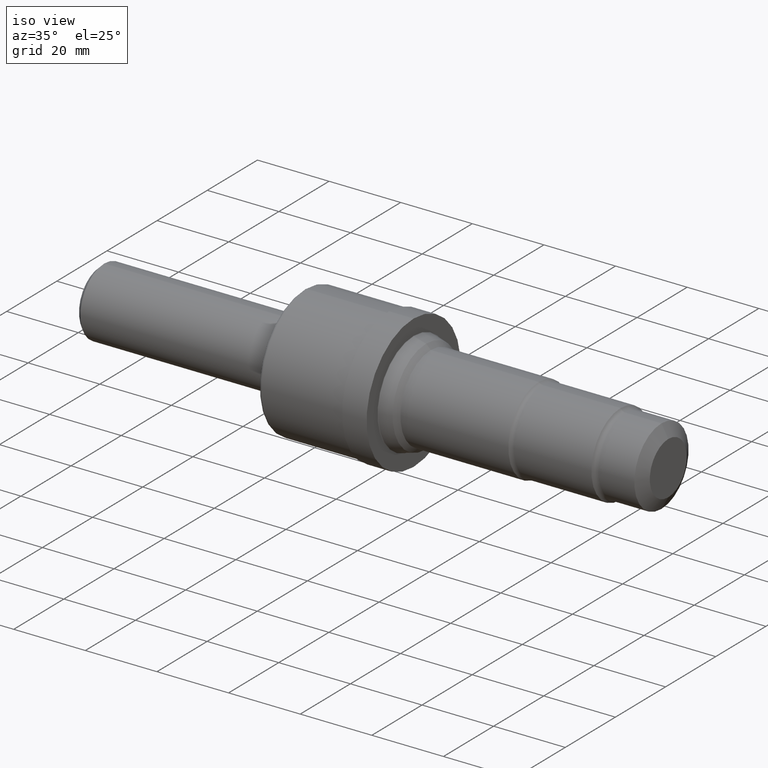
[diagram: clean part render]
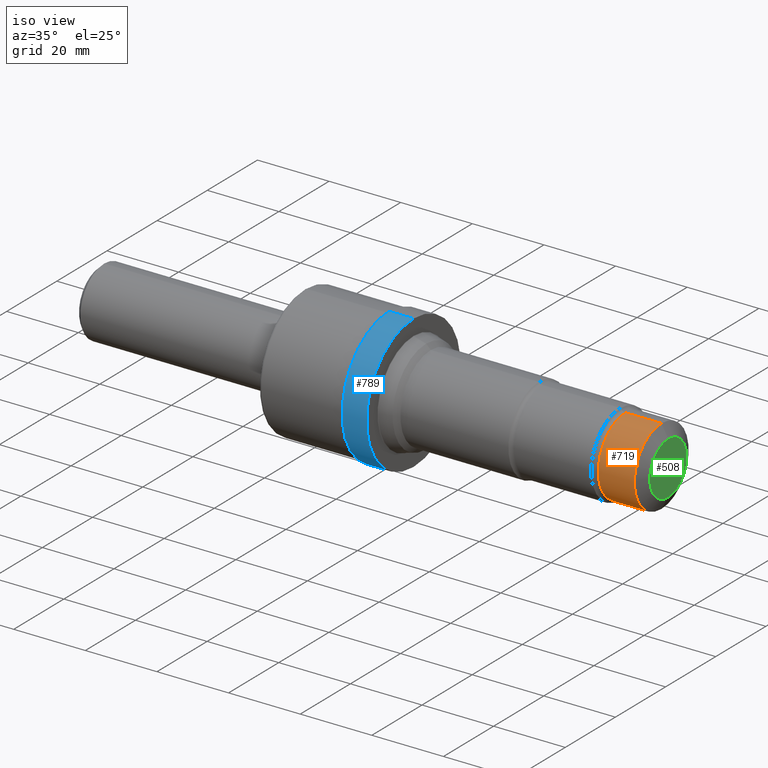
[diagram: same view with three faces highlighted in distinct colors, each labeled with its STEP entity id]
A machine part, iso view with three faces highlighted in distinct colors.
Their STEP definitions:

[orange] entity #719 — the highlighted cylindrical surface (partial cylindrical patch) has radius 10.8052 mm, axis along (-1, -0, -0).
#3 = AXIS2_PLACEMENT_3D ( 'NONE', #367, #142, #677 ) ;
#64 = ORIENTED_EDGE ( 'NONE', *, *, #150, .F. ) ;
#66 = DIRECTION ( 'NONE',  ( -1.000000000000000000, -0.0000000000000000000, -0.0000000000000000000 ) ) ;
#73 = EDGE_CURVE ( 'NONE', #700, #819, #380, .T. ) ;
#84 = CARTESIAN_POINT ( 'NONE',  ( 6.175000000000000711, 5.209647483572841703E-17, -0.4254000000000000004 ) ) ;
#101 = AXIS2_PLACEMENT_3D ( 'NONE', #324, #404, #759 ) ;
#142 = DIRECTION ( 'NONE',  ( -1.000000000000000000, -0.0000000000000000000, -0.0000000000000000000 ) ) ;
#150 = EDGE_CURVE ( 'NONE', #422, #819, #926, .T. ) ;
#191 = ORIENTED_EDGE ( 'NONE', *, *, #238, .F. ) ;
#234 = AXIS2_PLACEMENT_3D ( 'NONE', #745, #66, #290 ) ;
#238 = EDGE_CURVE ( 'NONE', #327, #422, #603, .T. ) ;
#290 = DIRECTION ( 'NONE',  ( 0.0000000000000000000, 0.0000000000000000000, 1.000000000000000000 ) ) ;
#324 = CARTESIAN_POINT ( 'NONE',  ( 6.175000000000000711, 0.0000000000000000000, 0.0000000000000000000 ) ) ;
#327 = VERTEX_POINT ( 'NONE', #84 ) ;
#356 = CARTESIAN_POINT ( 'NONE',  ( 5.778693575034636432, 5.399467737440679798E-17, -0.4253999999999998338 ) ) ;
#367 = CARTESIAN_POINT ( 'NONE',  ( 5.778693575034636432, 0.0000000000000000000, 0.0000000000000000000 ) ) ;
#380 = LINE ( 'NONE', #943, #635 ) ;
#404 = DIRECTION ( 'NONE',  ( -1.000000000000000000, -0.0000000000000000000, -0.0000000000000000000 ) ) ;
#422 = VERTEX_POINT ( 'NONE', #356 ) ;
#563 = DIRECTION ( 'NONE',  ( -1.000000000000000000, -0.0000000000000000000, -0.0000000000000000000 ) ) ;
#586 = DIRECTION ( 'NONE',  ( -1.000000000000000000, -0.0000000000000000000, -0.0000000000000000000 ) ) ;
#603 = LINE ( 'NONE', #870, #626 ) ;
#607 = CARTESIAN_POINT ( 'NONE',  ( 5.778693575034636432, 0.0000000000000000000, 0.4253999999999998338 ) ) ;
#626 = VECTOR ( 'NONE', #563, 39.37007874015748143 ) ;
#635 = VECTOR ( 'NONE', #586, 39.37007874015748143 ) ;
#637 = ORIENTED_EDGE ( 'NONE', *, *, #902, .T. ) ;
#677 = DIRECTION ( 'NONE',  ( 0.0000000000000000000, 0.0000000000000000000, 1.000000000000000000 ) ) ;
#682 = CIRCLE ( 'NONE', #101, 0.4254000000000000004 ) ;
#700 = VERTEX_POINT ( 'NONE', #862 ) ;
#719 = ADVANCED_FACE ( 'NONE', ( #793 ), #775, .T. ) ;
#745 = CARTESIAN_POINT ( 'NONE',  ( 0.0000000000000000000, 0.0000000000000000000, 0.0000000000000000000 ) ) ;
#747 = EDGE_LOOP ( 'NONE', ( #191, #637, #791, #64 ) ) ;
#759 = DIRECTION ( 'NONE',  ( 0.0000000000000000000, 0.0000000000000000000, 1.000000000000000000 ) ) ;
#775 = CYLINDRICAL_SURFACE ( 'NONE', #234, 0.4253999999999999448 ) ;
#791 = ORIENTED_EDGE ( 'NONE', *, *, #73, .T. ) ;
#793 = FACE_OUTER_BOUND ( 'NONE', #747, .T. ) ;
#819 = VERTEX_POINT ( 'NONE', #607 ) ;
#862 = CARTESIAN_POINT ( 'NONE',  ( 6.175000000000000711, 0.0000000000000000000, 0.4254000000000000004 ) ) ;
#870 = CARTESIAN_POINT ( 'NONE',  ( 0.0000000000000000000, 5.209647483572839855E-17, -0.4253999999999999448 ) ) ;
#902 = EDGE_CURVE ( 'NONE', #327, #700, #682, .T. ) ;
#926 = CIRCLE ( 'NONE', #3, 0.4253999999999998338 ) ;
#943 = CARTESIAN_POINT ( 'NONE',  ( 0.0000000000000000000, 0.0000000000000000000, 0.4253999999999999448 ) ) ;

[blue] entity #789 — the highlighted cylindrical surface (partial cylindrical patch) has radius 18.7325 mm, axis along (-1, -0, -0).
#16 = AXIS2_PLACEMENT_3D ( 'NONE', #291, #460, #650 ) ;
#46 = DIRECTION ( 'NONE',  ( -1.000000000000000000, -0.0000000000000000000, -0.0000000000000000000 ) ) ;
#57 = DIRECTION ( 'NONE',  ( -1.000000000000000000, -0.0000000000000000000, -0.0000000000000000000 ) ) ;
#80 = VERTEX_POINT ( 'NONE', #321 ) ;
#104 = AXIS2_PLACEMENT_3D ( 'NONE', #679, #46, #444 ) ;
#124 = CIRCLE ( 'NONE', #16, 0.7374999999999999334 ) ;
#167 = DIRECTION ( 'NONE',  ( -1.000000000000000000, -0.0000000000000000000, -0.0000000000000000000 ) ) ;
#240 = EDGE_CURVE ( 'NONE', #699, #80, #918, .T. ) ;
#241 = VERTEX_POINT ( 'NONE', #883 ) ;
#275 = ORIENTED_EDGE ( 'NONE', *, *, #355, .T. ) ;
#283 = CARTESIAN_POINT ( 'NONE',  ( 3.450000000000000622, 0.0000000000000000000, 0.7374999999999999334 ) ) ;
#291 = CARTESIAN_POINT ( 'NONE',  ( 3.450000000000000622, 0.0000000000000000000, 0.0000000000000000000 ) ) ;
#303 = EDGE_CURVE ( 'NONE', #680, #80, #602, .T. ) ;
#312 = LINE ( 'NONE', #520, #333 ) ;
#321 = CARTESIAN_POINT ( 'NONE',  ( 3.180000000000000604, 0.0000000000000000000, 0.7374999999999999334 ) ) ;
#333 = VECTOR ( 'NONE', #57, 39.37007874015748143 ) ;
#355 = EDGE_CURVE ( 'NONE', #241, #680, #124, .T. ) ;
#426 = AXIS2_PLACEMENT_3D ( 'NONE', #692, #167, #905 ) ;
#444 = DIRECTION ( 'NONE',  ( 0.0000000000000000000, 0.0000000000000000000, 1.000000000000000000 ) ) ;
#460 = DIRECTION ( 'NONE',  ( -1.000000000000000000, -0.0000000000000000000, -0.0000000000000000000 ) ) ;
#468 = EDGE_CURVE ( 'NONE', #241, #699, #312, .T. ) ;
#510 = CARTESIAN_POINT ( 'NONE',  ( 0.0000000000000000000, 0.0000000000000000000, 0.7374999999999999334 ) ) ;
#520 = CARTESIAN_POINT ( 'NONE',  ( 0.0000000000000000000, 9.031770143711730242E-17, -0.7374999999999999334 ) ) ;
#532 = ORIENTED_EDGE ( 'NONE', *, *, #303, .T. ) ;
#550 = CARTESIAN_POINT ( 'NONE',  ( 3.180000000000000604, 9.031770143711730242E-17, -0.7374999999999999334 ) ) ;
#602 = LINE ( 'NONE', #510, #913 ) ;
#650 = DIRECTION ( 'NONE',  ( 0.0000000000000000000, 0.0000000000000000000, 1.000000000000000000 ) ) ;
#679 = CARTESIAN_POINT ( 'NONE',  ( 3.180000000000000604, 0.0000000000000000000, 0.0000000000000000000 ) ) ;
#680 = VERTEX_POINT ( 'NONE', #283 ) ;
#692 = CARTESIAN_POINT ( 'NONE',  ( 0.0000000000000000000, 0.0000000000000000000, 0.0000000000000000000 ) ) ;
#699 = VERTEX_POINT ( 'NONE', #550 ) ;
#701 = CYLINDRICAL_SURFACE ( 'NONE', #426, 0.7374999999999999334 ) ;
#728 = FACE_OUTER_BOUND ( 'NONE', #807, .T. ) ;
#789 = ADVANCED_FACE ( 'NONE', ( #728 ), #701, .T. ) ;
#807 = EDGE_LOOP ( 'NONE', ( #917, #275, #532, #927 ) ) ;
#883 = CARTESIAN_POINT ( 'NONE',  ( 3.450000000000000622, 9.031770143711730242E-17, -0.7374999999999999334 ) ) ;
#905 = DIRECTION ( 'NONE',  ( 0.0000000000000000000, 0.0000000000000000000, 1.000000000000000000 ) ) ;
#913 = VECTOR ( 'NONE', #931, 39.37007874015748143 ) ;
#917 = ORIENTED_EDGE ( 'NONE', *, *, #468, .F. ) ;
#918 = CIRCLE ( 'NONE', #104, 0.7374999999999999334 ) ;
#927 = ORIENTED_EDGE ( 'NONE', *, *, #240, .F. ) ;
#931 = DIRECTION ( 'NONE',  ( -1.000000000000000000, -0.0000000000000000000, -0.0000000000000000000 ) ) ;

[green] entity #508 — the highlighted planar face has unit normal (-1, 0, -0).
#17 = DIRECTION ( 'NONE',  ( 0.0000000000000000000, 0.0000000000000000000, 1.000000000000000000 ) ) ;
#21 = DIRECTION ( 'NONE',  ( 0.0000000000000000000, 0.0000000000000000000, 1.000000000000000000 ) ) ;
#88 = AXIS2_PLACEMENT_3D ( 'NONE', #560, #421, #273 ) ;
#99 = EDGE_CURVE ( 'NONE', #739, #662, #365, .T. ) ;
#151 = CARTESIAN_POINT ( 'NONE',  ( 6.250000000000000000, 0.0000000000000000000, 0.0000000000000000000 ) ) ;
#178 = EDGE_LOOP ( 'NONE', ( #686, #539 ) ) ;
#198 = PLANE ( 'NONE',  #88 ) ;
#273 = DIRECTION ( 'NONE',  ( -0.0000000000000000000, 0.0000000000000000000, 1.000000000000000000 ) ) ;
#365 = CIRCLE ( 'NONE', #419, 0.2900964183546431707 ) ;
#374 = FACE_OUTER_BOUND ( 'NONE', #178, .T. ) ;
#419 = AXIS2_PLACEMENT_3D ( 'NONE', #151, #767, #17 ) ;
#421 = DIRECTION ( 'NONE',  ( -1.000000000000000000, 0.0000000000000000000, -0.0000000000000000000 ) ) ;
#508 = ADVANCED_FACE ( 'NONE', ( #374 ), #198, .F. ) ;
#518 = CARTESIAN_POINT ( 'NONE',  ( 6.250000000000000000, 4.381151992697046304E-17, -0.2900964183546431707 ) ) ;
#539 = ORIENTED_EDGE ( 'NONE', *, *, #99, .F. ) ;
#560 = CARTESIAN_POINT ( 'NONE',  ( 6.250000000000000000, 0.2900964183546431707, 0.0000000000000000000 ) ) ;
#642 = CIRCLE ( 'NONE', #742, 0.2900964183546431707 ) ;
#659 = CARTESIAN_POINT ( 'NONE',  ( 6.250000000000000000, 0.0000000000000000000, 0.2900964183546431707 ) ) ;
#662 = VERTEX_POINT ( 'NONE', #659 ) ;
#683 = CARTESIAN_POINT ( 'NONE',  ( 6.250000000000000000, 0.0000000000000000000, 0.0000000000000000000 ) ) ;
#686 = ORIENTED_EDGE ( 'NONE', *, *, #784, .F. ) ;
#739 = VERTEX_POINT ( 'NONE', #518 ) ;
#742 = AXIS2_PLACEMENT_3D ( 'NONE', #683, #904, #21 ) ;
#767 = DIRECTION ( 'NONE',  ( -1.000000000000000000, -0.0000000000000000000, -0.0000000000000000000 ) ) ;
#784 = EDGE_CURVE ( 'NONE', #662, #739, #642, .T. ) ;
#904 = DIRECTION ( 'NONE',  ( -1.000000000000000000, -0.0000000000000000000, -0.0000000000000000000 ) ) ;